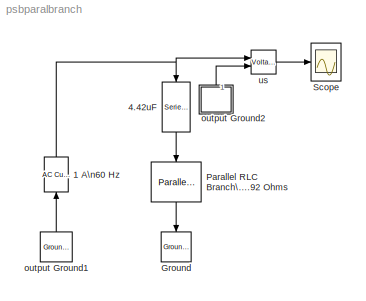
MODEL psbparalbranch
KIND model
BLOCK [Reference] 1 A\n60 Hz  REF=powerlib2/Electrical\nSources/AC Current Source
  A = 1
  F = 60
  P = 0
  PSBOutputType = 1
  Ports = [1, 1]
  SourceBlock = powerlib2/Electrical\nSources/AC Current Source
  SourceType = AC Current Source
  Tag = PoWeRsYsTeMbLoCk
  mesure = None
  stime = 0
BLOCK [Reference] 4.42uF  REF=powerlib2/Elements/Series RLC Branch
  PSBOutputType = 1
  Ports = [1, 1]
  SourceBlock = powerlib2/Elements/Series RLC Branch
  SourceType = Series RLC Branch
  Tag = PoWeRsYsTeMbLoCk
  a = 0
  b = 0
  c = 4.42e-06
  mesure = None
BLOCK [Reference] Ground  REF=powerlib2/Connectors/Ground (input)
  Ports = [1]
  SourceBlock = powerlib2/Connectors/Ground (input)
  SourceType = Ground
  Tag = PoWeRsYsTeMbLoCk
BLOCK [Reference] Parallel RLC Branch\n13.16 mH \n70.92 Ohms  REF=powerlib2/Elements/Parallel RLC Branch
  PSBOutputType = 1
  Ports = [1, 1]
  SourceBlock = powerlib2/Elements/Parallel RLC Branch
  SourceType = Parallel RLC Branch
  Tag = PoWeRsYsTeMbLoCk
  a = 70.92
  b = 13.16e-03
  c = 0
  mesure = None
BLOCK [Scope] Scope
  DataFormat = Array
  NumInputPorts = 1
  Ports = [1]
  TickLabels = on
  TimeRange = 0.1
  YMax = 1000
  YMin = -1000
BLOCK [Reference] output Ground1  REF=powerlib2/Connectors/Ground (output)
  PSBOutputType = 1
  Ports = [0, 1]
  SourceBlock = powerlib2/Connectors/Ground (output)
  SourceType = Ground
  Tag = PoWeRsYsTeMbLoCk
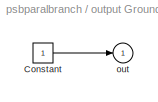
BLOCK [SubSystem] output Ground2
  MaskDescription = Ground connexion
  MaskDisplay = plot(-15,-15,15,15,[5 5],[-10 10],[0 0],[-5 5],[-5 -5],[-2.5 2.5],[15 5],[0 0])
  MaskHelp = web(psbhelp);
  MaskIconFrame = off
  MaskIconOpaque = on
  MaskIconRotate = port
  MaskIconUnits = autoscale
  MaskType = Ground
  MinAlgLoopOccurrences = off
  Ports = [0, 1]
  RTWSystemCode = Auto
  Tag = PoWeRsYsTeMbLoCk
  TreatAsAtomicUnit = off
BLOCK [Constant] output Ground2/Constant
BLOCK [Outport] output Ground2/out
  IconDisplay = Port number
  InitialOutput = 0
BLOCK [Reference] us  REF=powerlib2/Measurements/Voltage Measurement
  PSBOutputType = 0
  PSBequivalent = 1
  Ports = [2, 1]
  SourceBlock = powerlib2/Measurements/Voltage Measurement
  SourceType = Voltage Measurement
  Tag = PoWeRsYsTeMmEaSuReMeNt
NET 1 A\n60 Hz:1 -> 4.42uF:1, us:1
LINE 4.42uF:1 -> Parallel RLC Branch\n13.16 mH \n70.92 Ohms:1
LINE Parallel RLC Branch\n13.16 mH \n70.92 Ohms:1 -> Ground:1
LINE output Ground1:1 -> 1 A\n60 Hz:1
LINE output Ground2/Constant:1 -> output Ground2/out:1
LINE output Ground2:1 -> us:2
LINE us:1 -> Scope:1
note: NET lines group one-source signal fan-out (src -> all destinations, sorted); 1:1 wires keep LINE
